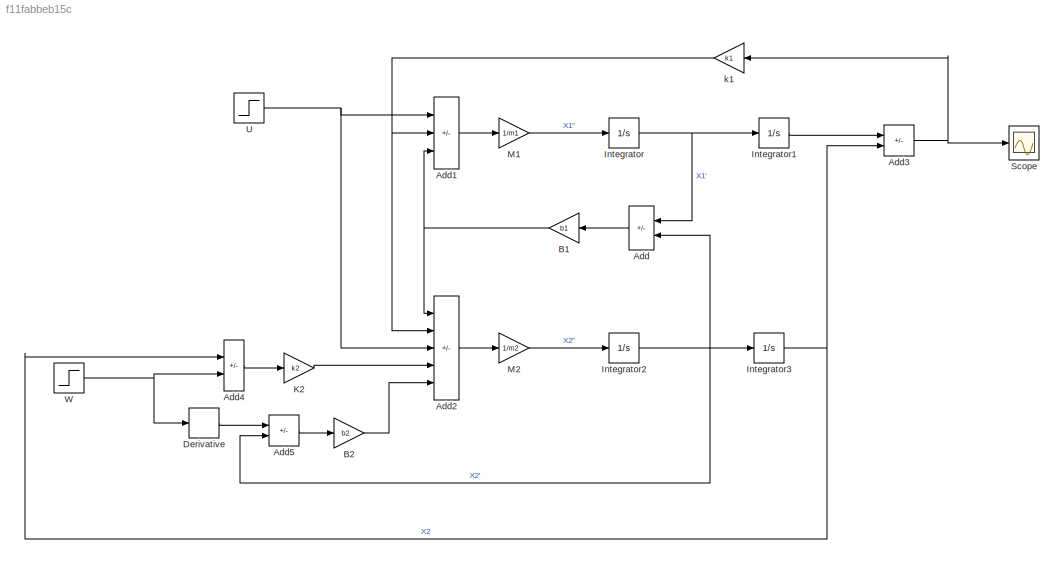
MODEL slx_f11fabbeb15c
KIND model
CONFIG AbsTol = auto
CONFIG EnableMultiTasking = off
CONFIG FixedStep = auto
CONFIG MaxStep = auto
CONFIG MinStep = auto
CONFIG RelTol = 1e-3
CONFIG SampleTimeConstraint = Unconstrained
CONFIG SolverName = VariableStepAuto
CONFIG StartTime = 0.0
CONFIG StopTime = 50
BLOCK [Sum] Add
  IconShape = rectangular
  Inputs = +-
BLOCK [Sum] Add1
  IconShape = rectangular
  Inputs = +--
BLOCK [Sum] Add2
  IconShape = rectangular
  Inputs = ++-++
BLOCK [Sum] Add3
  IconShape = rectangular
  Inputs = +-
BLOCK [Sum] Add4
  IconShape = rectangular
  Inputs = -+
BLOCK [Sum] Add5
  IconShape = rectangular
  Inputs = +-
BLOCK [Gain] B1
  Gain = b1
BLOCK [Gain] B2
  Gain = b2
BLOCK [Derivative] Derivative
BLOCK [Integrator] Integrator
BLOCK [Integrator] Integrator1
BLOCK [Integrator] Integrator2
BLOCK [Integrator] Integrator3
BLOCK [Gain] K2
  Gain = k2
BLOCK [Gain] M1
  Gain = 1/m1
BLOCK [Gain] M2
  Gain = 1/m2
BLOCK [Scope] Scope
  Floating = off
  NumInputPorts = 1
  ScopeSpecificationString = Simulink.scopes.TimeScopeBlockCfg('CurrentConfiguration', extmgr.ConfigurationSet(extmgr.Configuration('Core','General UI',true),extmgr.Configuration('Core','Source UI',true),extmgr.Configuration('Sources','WiredSimulink',true),extmgr.Configuration('Visuals','Time Domain',true,'SerializedDisplays',{struct('MinYLimReal','-0.11282','MaxYLimReal','0.1017','YLabelReal','','MinYLimMag','0.00000','MaxYL...<+1421ch>
BLOCK [Step] U
  OutDataTypeStr = Inherit: Inherit via back propagation
  SampleTime = 0
  Time = 0
BLOCK [Step] W
  After = 0.1
  OutDataTypeStr = Inherit: Inherit via back propagation
  SampleTime = 0
  Time = 0
BLOCK [Gain] k1
  Gain = k1
LINE Add1:1 -> M1:1
LINE Add2:1 -> M2:1
NET Add3:1 -> Scope:1, k1:1
LINE Add4:1 -> K2:1
LINE Add5:1 -> B2:1
LINE Add:1 -> B1:1
NET B1:1 -> Add1:3, Add2:1
LINE B2:1 -> Add2:5
LINE Derivative:1 -> Add5:1
LINE Integrator1:1 -> Add3:1
NET Integrator2:1 -> Add5:2, Add:2, Integrator3:1
NET Integrator3:1 -> Add3:2, Add4:1
NET Integrator:1 -> Add:1, Integrator1:1
LINE K2:1 -> Add2:4
LINE M1:1 -> Integrator:1
LINE M2:1 -> Integrator2:1
NET U:1 -> Add1:1, Add2:3
NET W:1 -> Add4:2, Derivative:1
NET k1:1 -> Add1:2, Add2:2
note: NET lines group one-source signal fan-out (src -> all destinations, sorted); 1:1 wires keep LINE
